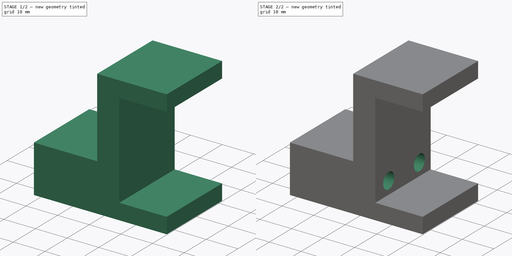
[diagram: build sequence overview — one tinted view per stage of 2, left to right]
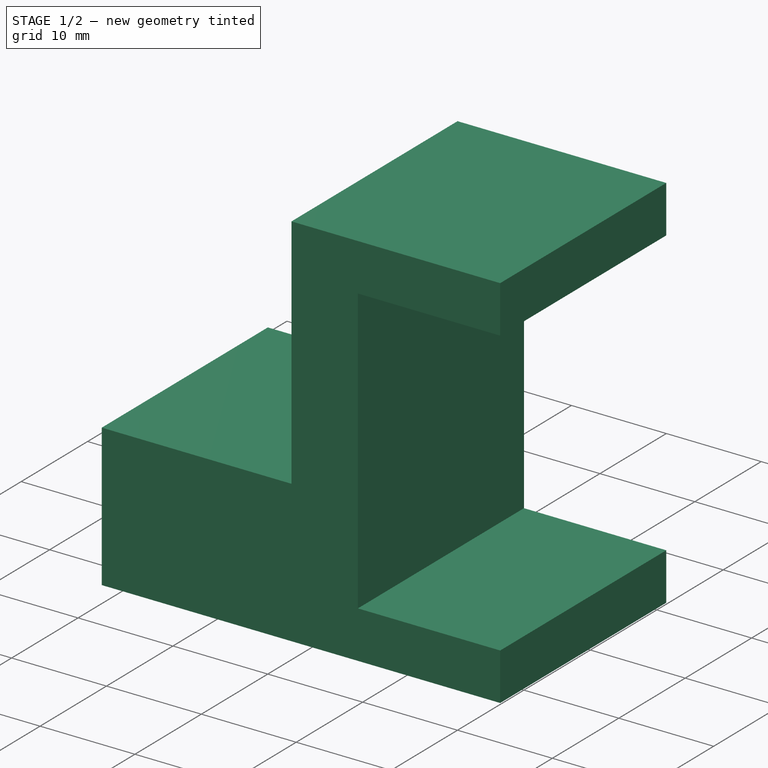
[diagram: stage 1 of 2 — iso view after this stage's code; geometry added in this stage tinted green]
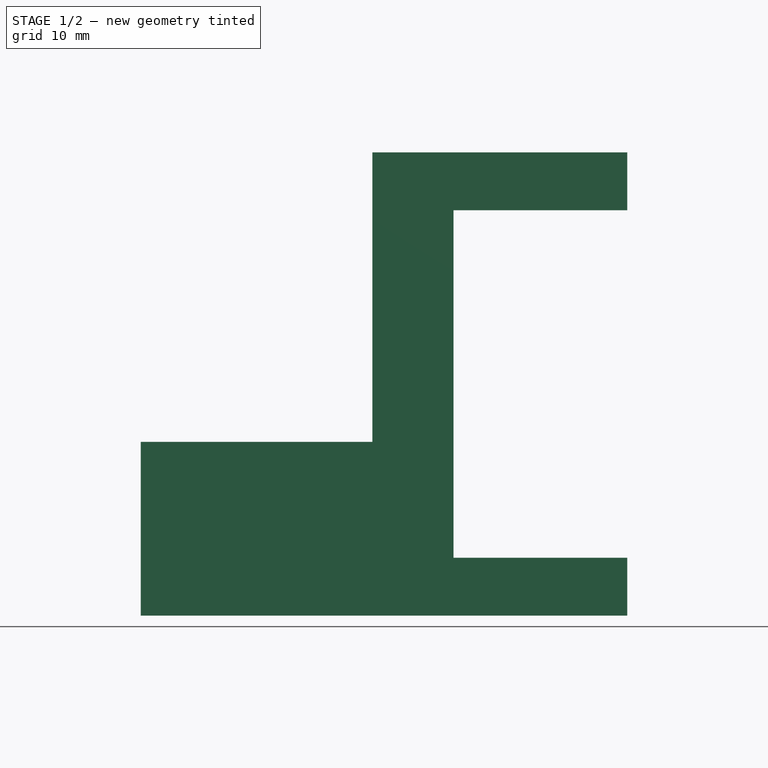
[diagram: stage 1 of 2 — front view after this stage's code; geometry added in this stage tinted green]
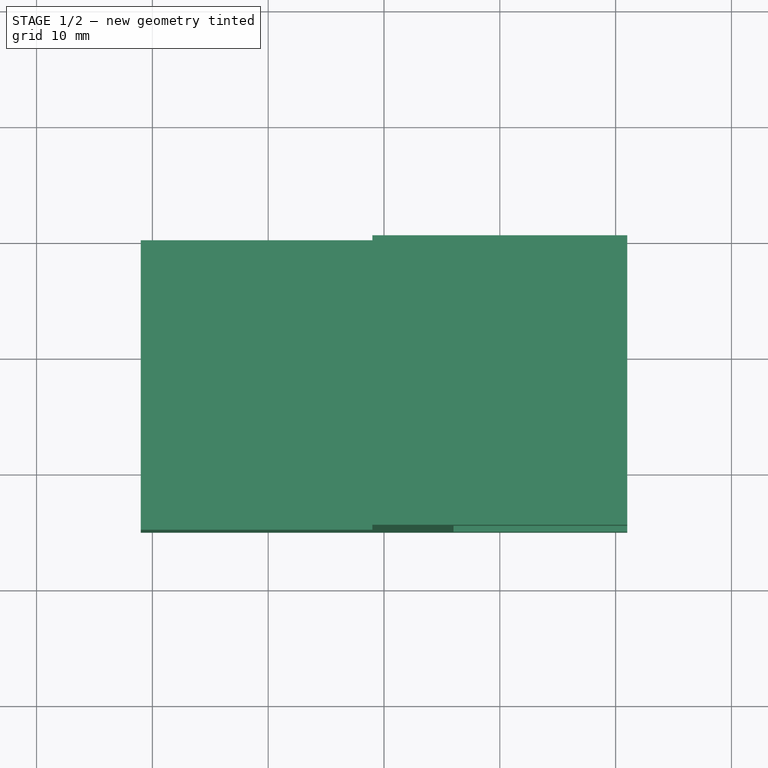
[diagram: stage 1 of 2 — top view after this stage's code; geometry added in this stage tinted green]
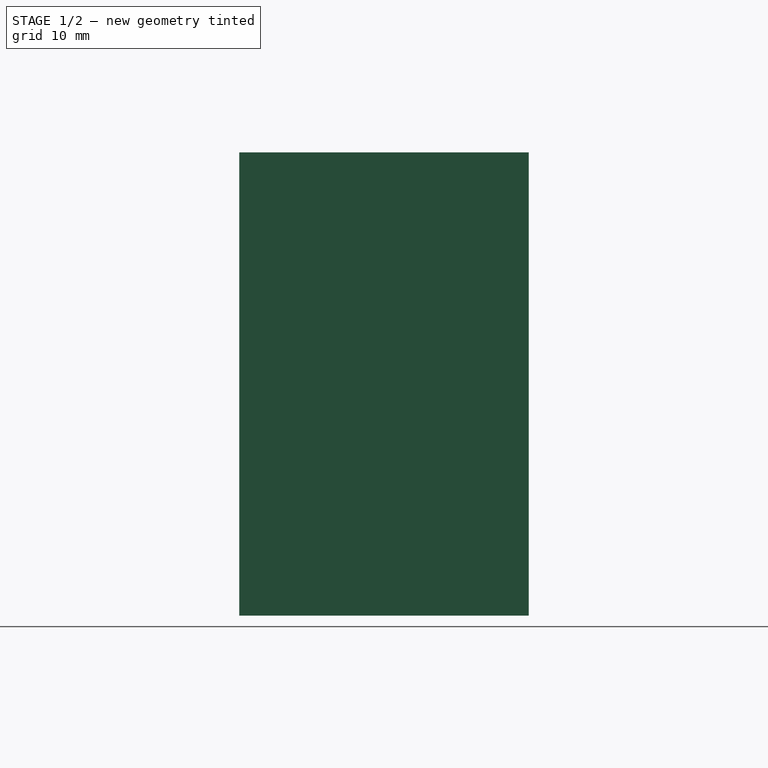
[diagram: stage 1 of 2 — right view after this stage's code; geometry added in this stage tinted green]
FCSTD DOCUMENT  (FreeCAD 0.19R24291 (Git))
Label: touchmaster_monitor_bracket
License: All rights reserved
LicenseURL: http://en.wikipedia.org/wiki/All_rights_reserved
objects: Sketcher::SketchObject×2, PartDesign::Pad×1, PartDesign::Hole×1, PartDesign::Body×1
note: 7 computed .brp shape members not serialized (recipe doc carries the construction recipe); baked Part::Feature solids carry a one-line shape summary decoded from their .brp

FEATURE [Sketcher::SketchObject] Sketch
  FullyConstrained = false
  MapMode = 5
  Placement = pos=(0,0,0) rot=(1,0,0;1.5708rad)
  Support = -> [XZ_Plane]
  sketch-geometry (10):
    g0: LineSegment StartX=-21 StartY=-19.9774 StartZ=0 EndX=21 EndY=-19.9774 EndZ=0
    g1: LineSegment StartX=21 StartY=-14.9774 StartZ=0 EndX=6 EndY=-14.9774 EndZ=0
    g2: LineSegment StartX=6 StartY=-14.9774 StartZ=0 EndX=6 EndY=15.0226 EndZ=0
    g3: LineSegment StartX=21 StartY=15.0226 StartZ=0 EndX=6 EndY=15.0226 EndZ=0
    g4: LineSegment StartX=21 StartY=20.0226 StartZ=0 EndX=21 EndY=15.0226 EndZ=0
    g5: LineSegment StartX=21 StartY=-14.9774 StartZ=0 EndX=21 EndY=-19.9774 EndZ=0
    g6: LineSegment StartX=-21 StartY=-19.9774 StartZ=0 EndX=-21 EndY=-4.97735 EndZ=0
    g7: LineSegment StartX=21 StartY=20.0226 StartZ=0 EndX=-1 EndY=20.0226 EndZ=0
    g8: LineSegment StartX=-1 StartY=20.0226 StartZ=0 EndX=-1 EndY=-4.97735 EndZ=0
    g9: LineSegment StartX=-21 StartY=-4.97735 StartZ=0 EndX=-1 EndY=-4.97735 EndZ=0
  constraints (28):
    c: Horizontal(g1)
    c: Coincident(g2,g1)
    c: Vertical(g2)
    c: Coincident(g3,g2)
    c: Horizontal(g3)
    c: DistanceY(g2,g2) = 30
    c: Coincident(g4,g3)
    c: Coincident(g5,g1)
    c: Coincident(g5,g0)
    c: Vertical(g5)
    c: DistanceY(g4,g4) = 5
    c: DistanceX(g0,g0) = 42
    c: DistanceX(g1,g1) = 15
    c: DistanceX(g3,g3) = 15
    c: Symmetric(g0,g0,g-2)
    c: Coincident(g6,g0)
    c: Vertical(g6)
    c: Coincident(g7,g4)
    c: Horizontal(g7)
    c: DistanceX(g7,g7) = 22
    c: DistanceY(g6,g6) = 15
    c: Coincident(g8,g7)
    c: Vertical(g8)
    c: Coincident(g9,g6)
    c: Coincident(g9,g8)
    c: Horizontal(g9)
    c: DistanceX(g9,g9) = 20
    c: DistanceY(g8,g8) = 25
FEATURE [PartDesign::Pad] Pad
  Direction = (1,1,1)
  Length = 25
  Length2 = 100
  Placement = pos=(0,0,0) rot=(1,0,0;1.5708rad)
  Profile = -> Sketch
  Type = 0
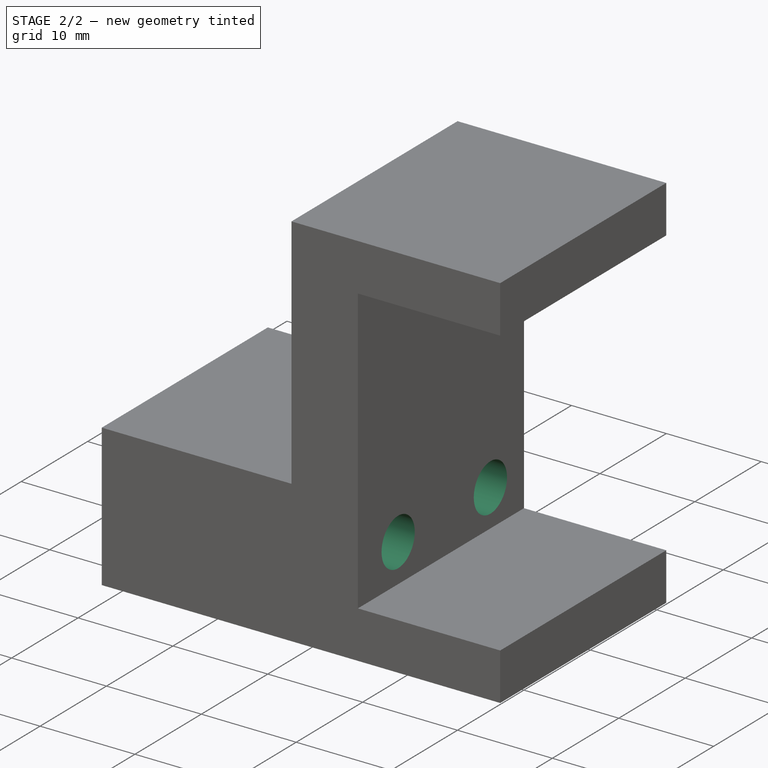
[diagram: stage 2 of 2 — iso view after this stage's code; geometry added in this stage tinted green]
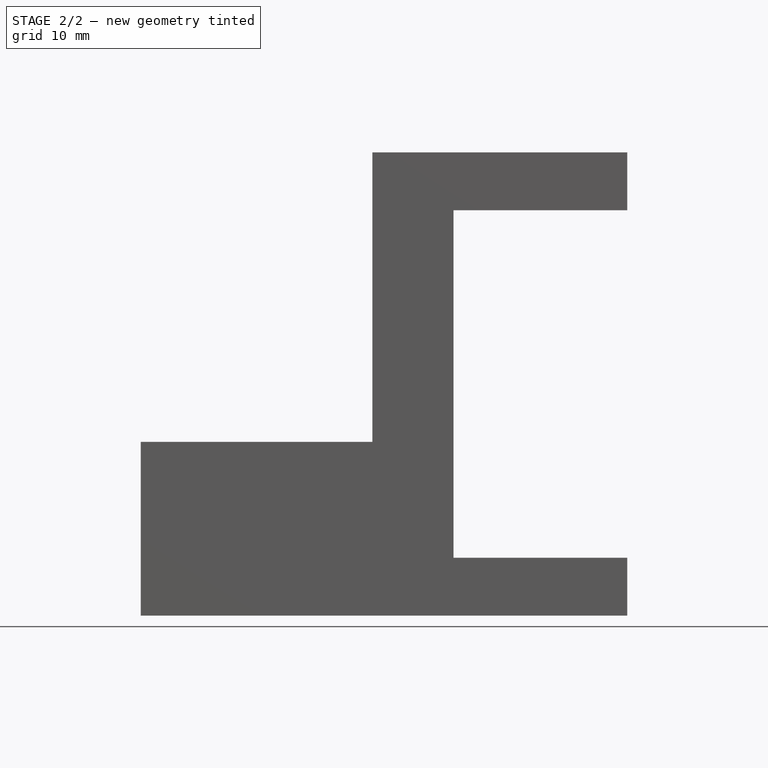
[diagram: stage 2 of 2 — front view after this stage's code; geometry added in this stage tinted green]
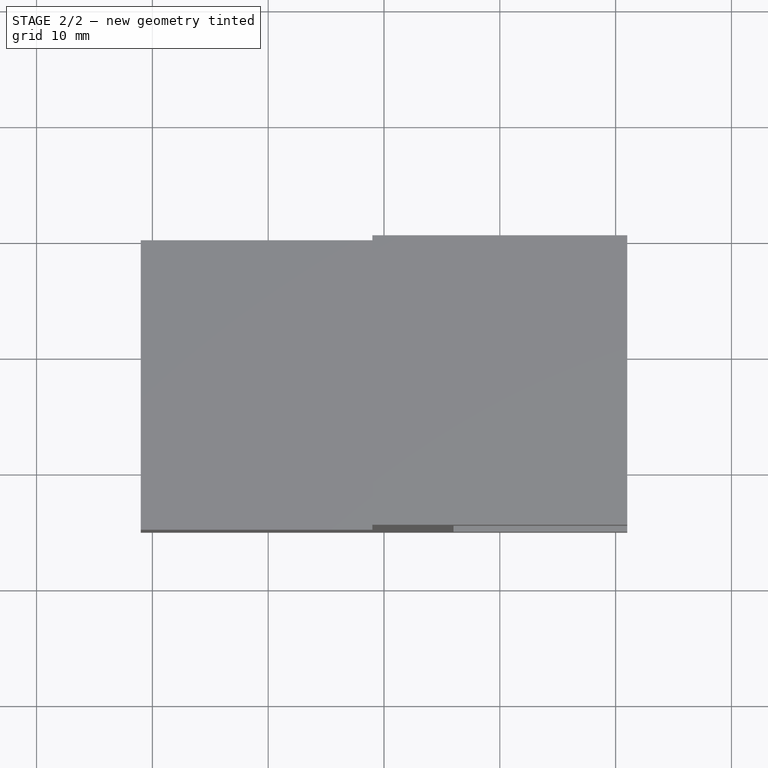
[diagram: stage 2 of 2 — top view after this stage's code; geometry added in this stage tinted green]
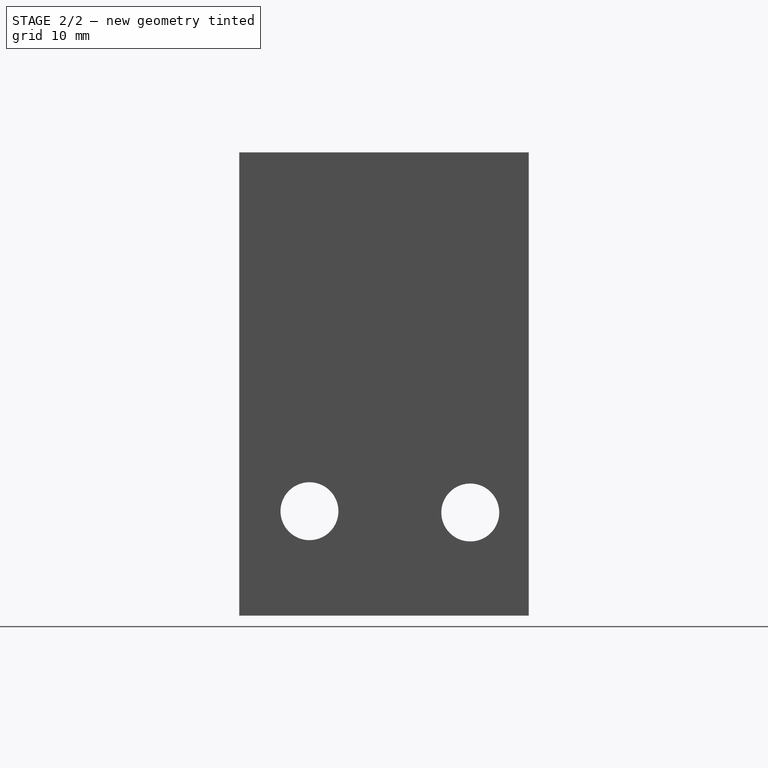
[diagram: stage 2 of 2 — right view after this stage's code; geometry added in this stage tinted green]
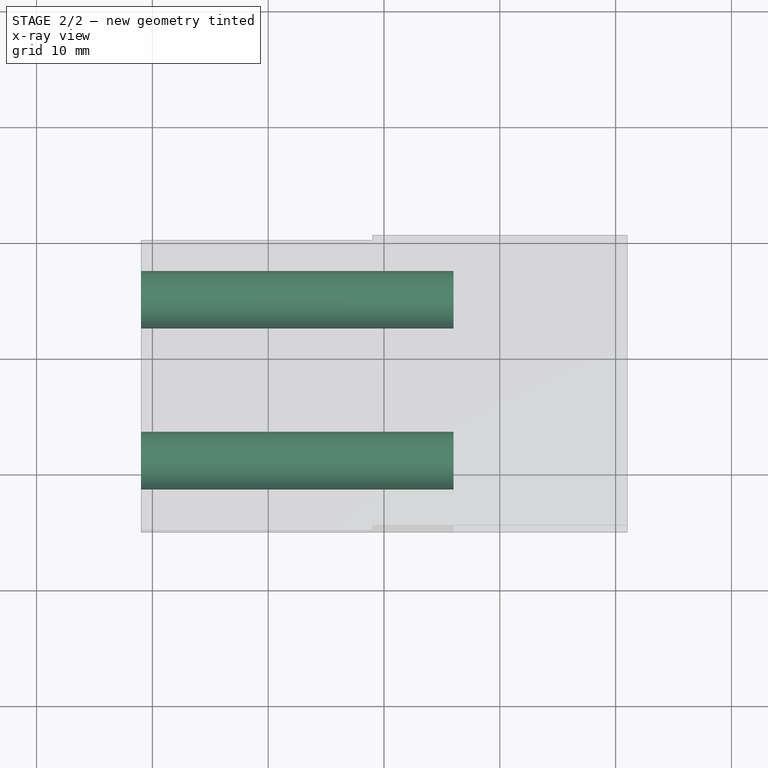
[diagram: stage 2 of 2 — x-ray composite at the top view; earlier geometry ghosted, this stage's added geometry solid]
FEATURE [Sketcher::SketchObject] Sketch001
  FullyConstrained = false
  MapMode = 5
  Placement = pos=(21,0,0) rot=(0.707107,0,0.707107;3.14159rad)
  Support = -> [Pad]
  sketch-geometry (2):
    g0: Circle CenterX=-10.9605 CenterY=18.9369 CenterZ=0 NormalX=0 NormalY=0 NormalZ=1 AngleXU=0 Radius=2.75
    g1: Circle CenterX=-11.0725 CenterY=5.05047 CenterZ=0 NormalX=0 NormalY=0 NormalZ=1 AngleXU=0 Radius=2.75
  constraints (2):
    c: Diameter(g0) = 5.5
    c: Diameter(g1) = 5.5
FEATURE [PartDesign::Hole] Hole
  BaseFeature = -> Pad
  Depth = 45
  DepthType = 0
  Diameter = 5
  DrillForDepth = false
  DrillPoint = 1
  DrillPointAngle = 118
  HoleCutCountersinkAngle = 90
  HoleCutCustomValues = false
  HoleCutDepth = 0
  HoleCutDiameter = 6.1
  HoleCutType = 0
  ModelActualThread = false
  Placement = pos=(0,0,0) rot=(1,0,0;1.5708rad)
  Profile = -> Sketch001
  Tapered = false
  TaperedAngle = 90
  ThreadAngle = 0
  ThreadClass = 0
  ThreadCutOffInner = 0
  ThreadCutOffOuter = 0
  ThreadDirection = 0
  ThreadFit = 0
  ThreadPitch = 0
  ThreadSize = 0
  ThreadType = 0
  Threaded = false
FEATURE [PartDesign::Body] Body
  Group = -> [Sketch,Pad,Sketch001,Hole]
  Origin = -> Origin
  Tip = -> Hole
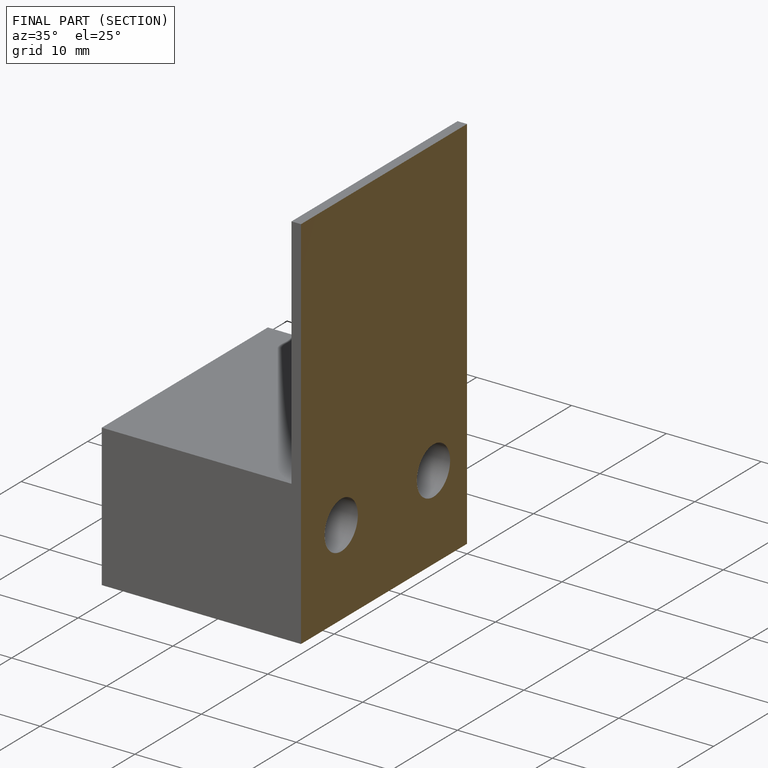
[diagram: finished part — half-section view (interior)]
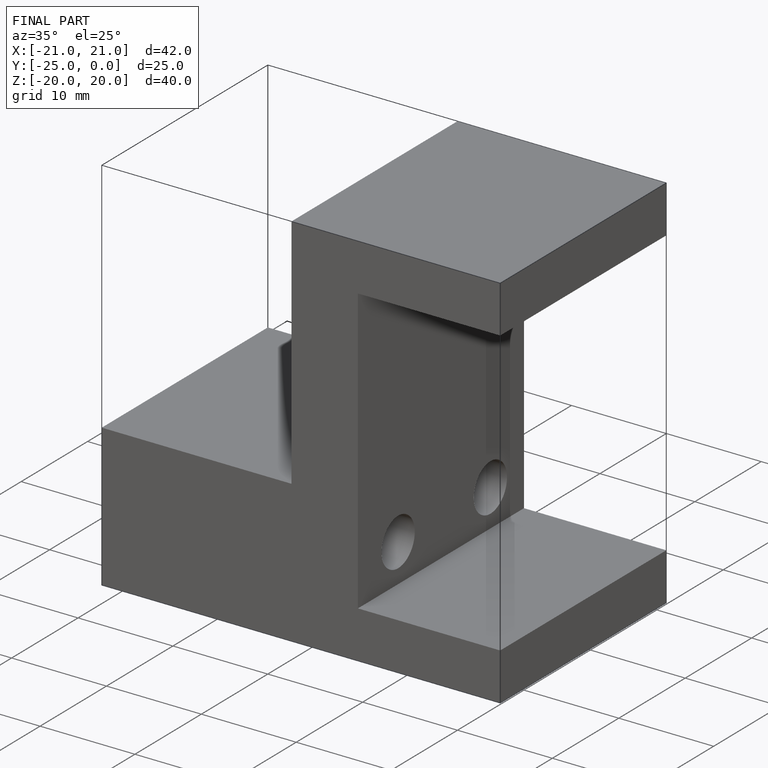
[diagram: finished part — iso view with bounding-box wireframe]
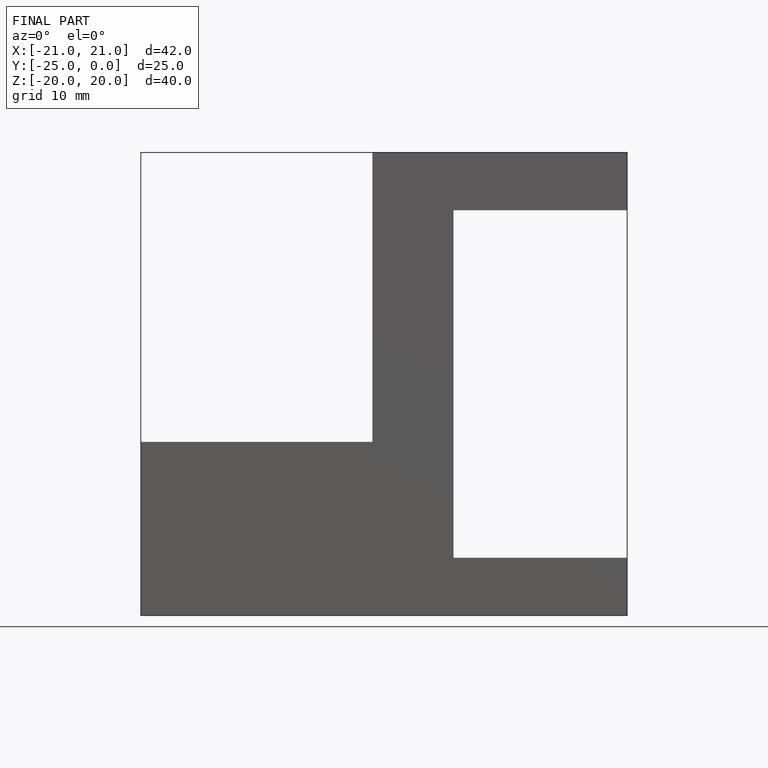
[diagram: finished part — front view with bounding-box wireframe]
